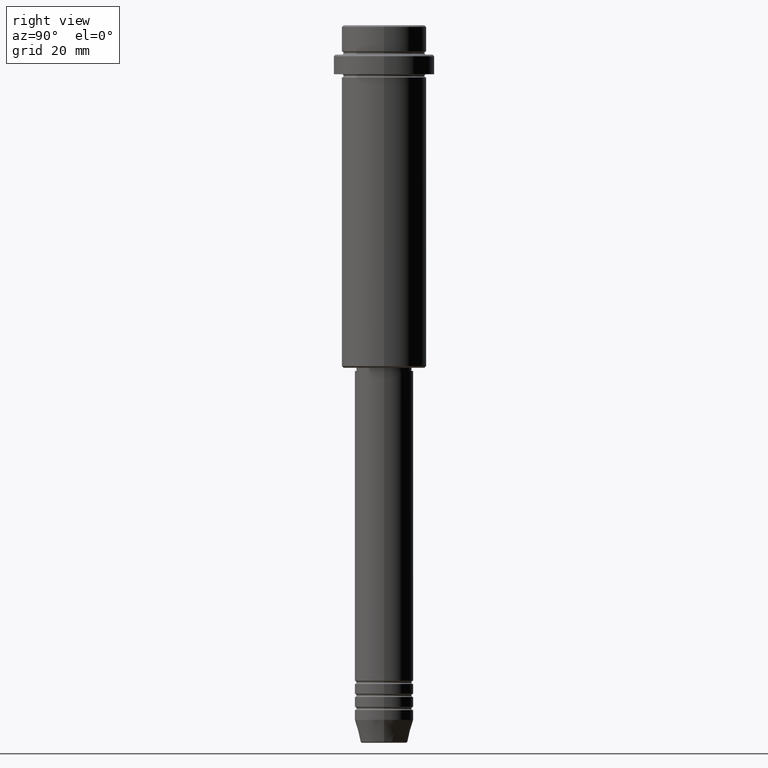
[diagram: clean part render]
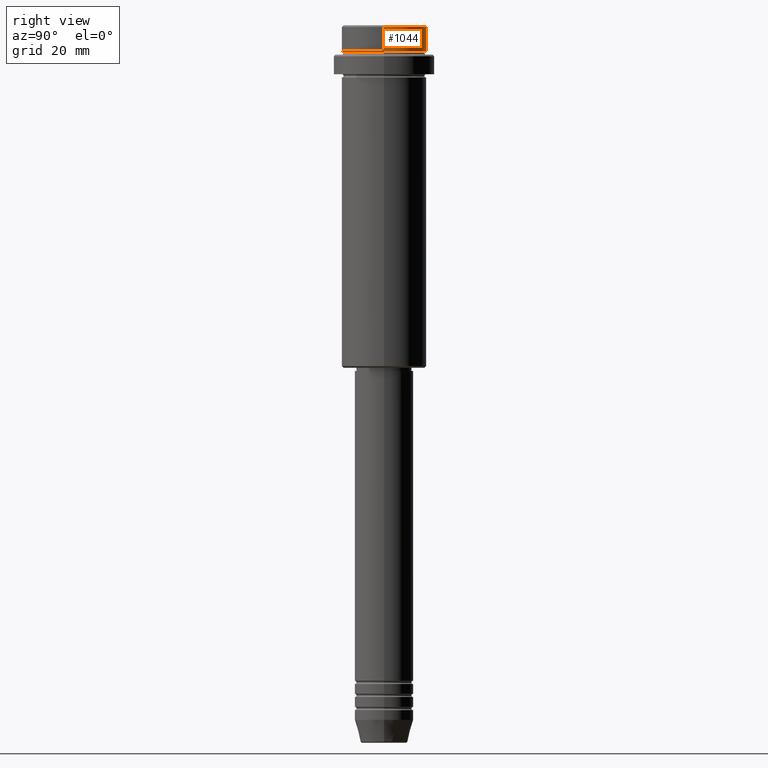
[diagram: same view with one face highlighted and labeled with its STEP entity id]
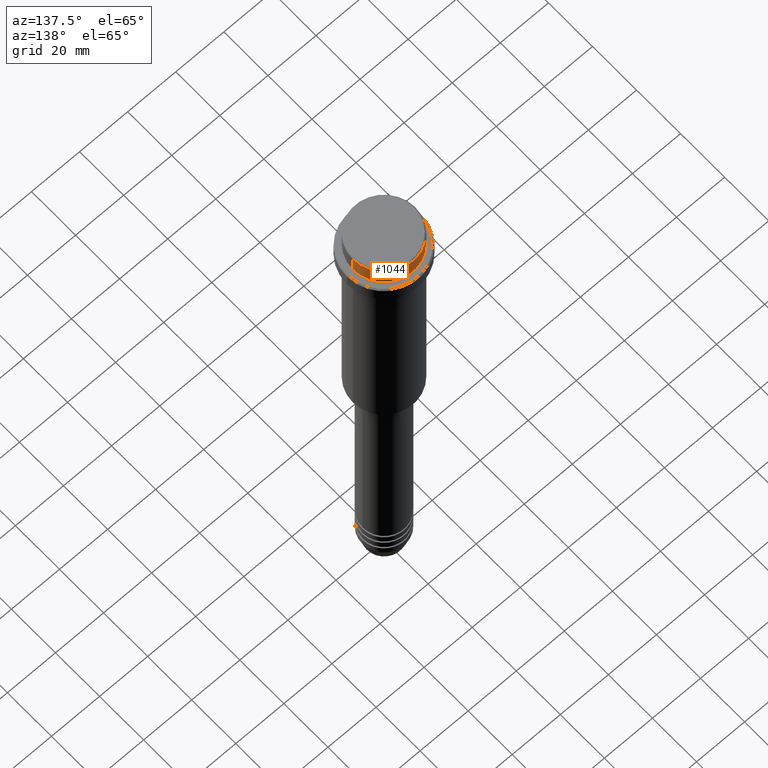
[diagram: same view with one face highlighted and labeled with its STEP entity id]
A machine part, right view. The second image highlights one B-rep face of the part: STEP entity #1044.
A second angle (auxiliary view) of the same face is appended — the face is thin or edge-on in the first view.
In plain terms, the highlighted cylindrical surface (partial cylindrical patch) has radius 13 mm, axis along (-0, -0, 1).
Its self-contained STEP definition (entity closure, byte-faithful):
#51 = CARTESIAN_POINT ( 'NONE',  ( 0.000000000000000000, 0.000000000000000000, 0.000000000000000000 ) ) ;
#148 = DIRECTION ( 'NONE',  ( 0.000000000000000000, 0.000000000000000000, -1.000000000000000000 ) ) ;
#150 = CARTESIAN_POINT ( 'NONE',  ( 0.000000000000000000, 0.000000000000000000, -7.999999999999998224 ) ) ;
#172 = VERTEX_POINT ( 'NONE', #1154 ) ;
#198 = DIRECTION ( 'NONE',  ( -0.000000000000000000, -0.000000000000000000, 1.000000000000000000 ) ) ;
#230 = VECTOR ( 'NONE', #1135, 1000.000000000000000 ) ;
#237 = AXIS2_PLACEMENT_3D ( 'NONE', #150, #1117, #1333 ) ;
#271 = DIRECTION ( 'NONE',  ( 1.000000000000000000, 0.000000000000000000, 0.000000000000000000 ) ) ;
#331 = CARTESIAN_POINT ( 'NONE',  ( -12.99999999999999822, 1.592040838891558898E-15, -0.4999999999999483746 ) ) ;
#405 = AXIS2_PLACEMENT_3D ( 'NONE', #921, #148, #271 ) ;
#452 = EDGE_CURVE ( 'NONE', #172, #1088, #1172, .T. ) ;
#475 = ORIENTED_EDGE ( 'NONE', *, *, #916, .T. ) ;
#484 = DIRECTION ( 'NONE',  ( -0.000000000000000000, -0.000000000000000000, 1.000000000000000000 ) ) ;
#553 = FACE_OUTER_BOUND ( 'NONE', #1093, .T. ) ;
#559 = VERTEX_POINT ( 'NONE', #331 ) ;
#793 = VERTEX_POINT ( 'NONE', #1156 ) ;
#817 = EDGE_CURVE ( 'NONE', #172, #793, #940, .T. ) ;
#826 = LINE ( 'NONE', #1160, #230 ) ;
#916 = EDGE_CURVE ( 'NONE', #559, #793, #1103, .T. ) ;
#921 = CARTESIAN_POINT ( 'NONE',  ( 0.000000000000000000, 0.000000000000000000, -0.4999999999999483746 ) ) ;
#940 = LINE ( 'NONE', #1181, #1045 ) ;
#979 = ORIENTED_EDGE ( 'NONE', *, *, #1238, .T. ) ;
#992 = AXIS2_PLACEMENT_3D ( 'NONE', #51, #484, #1323 ) ;
#1032 = CYLINDRICAL_SURFACE ( 'NONE', #992, 12.99999999999999822 ) ;
#1037 = ORIENTED_EDGE ( 'NONE', *, *, #452, .T. ) ;
#1044 = ADVANCED_FACE ( 'NONE', ( #553 ), #1032, .T. ) ;
#1045 = VECTOR ( 'NONE', #198, 1000.000000000000000 ) ;
#1088 = VERTEX_POINT ( 'NONE', #1331 ) ;
#1093 = EDGE_LOOP ( 'NONE', ( #1037, #979, #475, #1194 ) ) ;
#1103 = CIRCLE ( 'NONE', #405, 12.99999999999999822 ) ;
#1117 = DIRECTION ( 'NONE',  ( -0.000000000000000000, -0.000000000000000000, 1.000000000000000000 ) ) ;
#1135 = DIRECTION ( 'NONE',  ( -0.000000000000000000, -0.000000000000000000, 1.000000000000000000 ) ) ;
#1154 = CARTESIAN_POINT ( 'NONE',  ( 12.99999999999999822, 0.000000000000000000, -7.999999999999998224 ) ) ;
#1156 = CARTESIAN_POINT ( 'NONE',  ( 12.99999999999999822, 0.000000000000000000, -0.4999999999999483746 ) ) ;
#1160 = CARTESIAN_POINT ( 'NONE',  ( -12.99999999999999822, 1.592040838891558898E-15, 0.000000000000000000 ) ) ;
#1172 = CIRCLE ( 'NONE', #237, 12.99999999999999822 ) ;
#1181 = CARTESIAN_POINT ( 'NONE',  ( 12.99999999999999822, 0.000000000000000000, 0.000000000000000000 ) ) ;
#1194 = ORIENTED_EDGE ( 'NONE', *, *, #817, .F. ) ;
#1238 = EDGE_CURVE ( 'NONE', #1088, #559, #826, .T. ) ;
#1323 = DIRECTION ( 'NONE',  ( 1.000000000000000000, 0.000000000000000000, 0.000000000000000000 ) ) ;
#1331 = CARTESIAN_POINT ( 'NONE',  ( -12.99999999999999822, 1.592040838891558898E-15, -7.999999999999998224 ) ) ;
#1333 = DIRECTION ( 'NONE',  ( 1.000000000000000000, 0.000000000000000000, 0.000000000000000000 ) ) ;